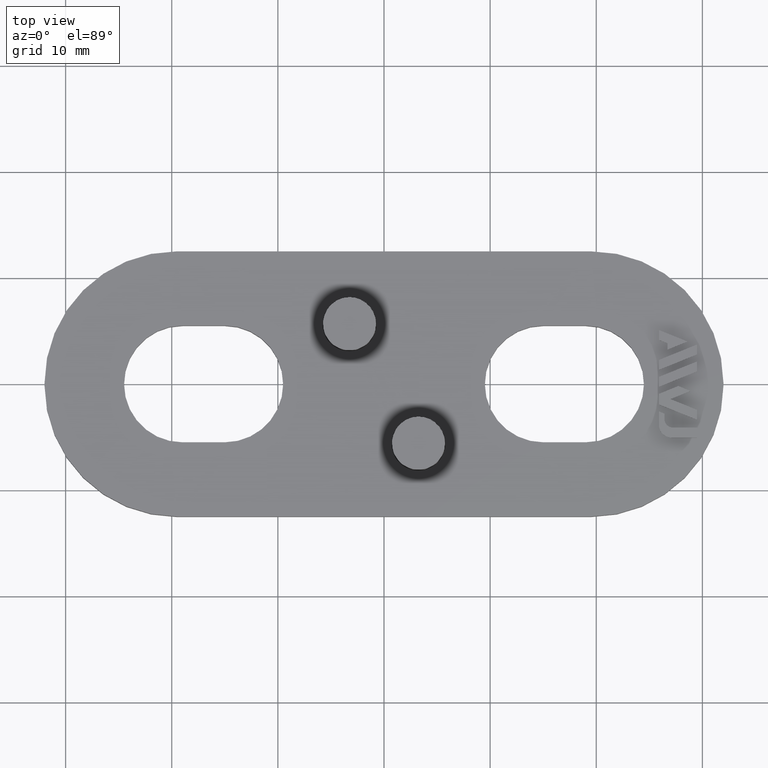
[diagram: clean part render]
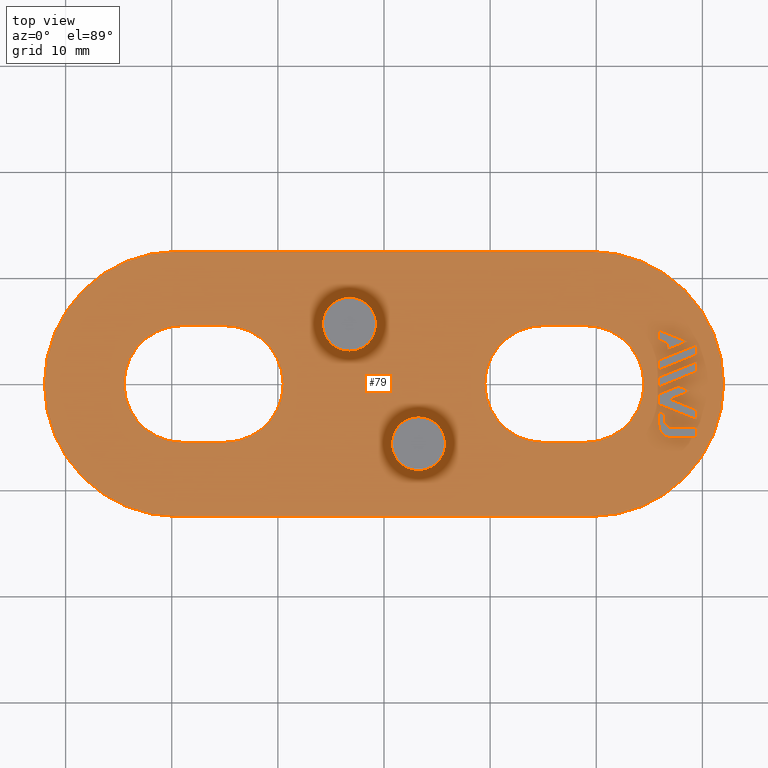
[diagram: same view with one face highlighted and labeled with its STEP entity id]
A machine part, top view. The second image highlights one B-rep face of the part: STEP entity #79.
In plain terms, the highlighted planar face has unit normal (0, -0, -1).
Its self-contained STEP definition (entity closure, byte-faithful):
#79 = ADVANCED_FACE( '', ( #159, #160, #161, #162, #163, #164, #165, #166, #167, #168 ), #169, .F. );
#159 = FACE_BOUND( '', #316, .T. );
#160 = FACE_BOUND( '', #317, .T. );
#161 = FACE_BOUND( '', #318, .T. );
#162 = FACE_BOUND( '', #319, .T. );
#163 = FACE_BOUND( '', #320, .T. );
#164 = FACE_BOUND( '', #321, .T. );
#165 = FACE_BOUND( '', #322, .T. );
#166 = FACE_BOUND( '', #323, .T. );
#167 = FACE_OUTER_BOUND( '', #324, .T. );
#168 = FACE_BOUND( '', #325, .T. );
#169 = PLANE( '', #326 );
#316 = EDGE_LOOP( '', ( #515, #516, #517, #518, #519, #520, #521, #522 ) );
#317 = EDGE_LOOP( '', ( #523, #524, #525, #526, #527, #528, #529 ) );
#318 = EDGE_LOOP( '', ( #530, #531, #532, #533 ) );
#319 = EDGE_LOOP( '', ( #534, #535, #536, #537 ) );
#320 = EDGE_LOOP( '', ( #538, #539, #540, #541, #542 ) );
#321 = EDGE_LOOP( '', ( #543 ) );
#322 = EDGE_LOOP( '', ( #544 ) );
#323 = EDGE_LOOP( '', ( #545, #546, #547, #548, #549, #550 ) );
#324 = EDGE_LOOP( '', ( #551, #552, #553, #554, #555, #556 ) );
#325 = EDGE_LOOP( '', ( #557, #558, #559, #560, #561, #562 ) );
#326 = AXIS2_PLACEMENT_3D( '', #563, #564, #565 );
#515 = ORIENTED_EDGE( '', *, *, #1070, .T. );
#516 = ORIENTED_EDGE( '', *, *, #1063, .T. );
#517 = ORIENTED_EDGE( '', *, *, #1067, .T. );
#518 = ORIENTED_EDGE( '', *, *, #1071, .T. );
#519 = ORIENTED_EDGE( '', *, *, #1072, .T. );
#520 = ORIENTED_EDGE( '', *, *, #1073, .T. );
#521 = ORIENTED_EDGE( '', *, *, #1074, .T. );
#522 = ORIENTED_EDGE( '', *, *, #1075, .T. );
#523 = ORIENTED_EDGE( '', *, *, #1076, .T. );
#524 = ORIENTED_EDGE( '', *, *, #1077, .T. );
#525 = ORIENTED_EDGE( '', *, *, #1078, .T. );
#526 = ORIENTED_EDGE( '', *, *, #1079, .T. );
#527 = ORIENTED_EDGE( '', *, *, #1080, .T. );
#528 = ORIENTED_EDGE( '', *, *, #1081, .T. );
#529 = ORIENTED_EDGE( '', *, *, #1082, .T. );
#530 = ORIENTED_EDGE( '', *, *, #1083, .T. );
#531 = ORIENTED_EDGE( '', *, *, #1084, .T. );
#532 = ORIENTED_EDGE( '', *, *, #1085, .T. );
#533 = ORIENTED_EDGE( '', *, *, #1086, .T. );
#534 = ORIENTED_EDGE( '', *, *, #1087, .T. );
#535 = ORIENTED_EDGE( '', *, *, #1088, .T. );
#536 = ORIENTED_EDGE( '', *, *, #1089, .T. );
#537 = ORIENTED_EDGE( '', *, *, #1090, .T. );
#538 = ORIENTED_EDGE( '', *, *, #1091, .T. );
#539 = ORIENTED_EDGE( '', *, *, #1092, .T. );
#540 = ORIENTED_EDGE( '', *, *, #1093, .T. );
#541 = ORIENTED_EDGE( '', *, *, #1094, .T. );
#542 = ORIENTED_EDGE( '', *, *, #1095, .T. );
#543 = ORIENTED_EDGE( '', *, *, #1096, .T. );
#544 = ORIENTED_EDGE( '', *, *, #1097, .T. );
#545 = ORIENTED_EDGE( '', *, *, #1098, .F. );
#546 = ORIENTED_EDGE( '', *, *, #1099, .F. );
#547 = ORIENTED_EDGE( '', *, *, #1100, .F. );
#548 = ORIENTED_EDGE( '', *, *, #1101, .F. );
#549 = ORIENTED_EDGE( '', *, *, #1102, .F. );
#550 = ORIENTED_EDGE( '', *, *, #1103, .F. );
#551 = ORIENTED_EDGE( '', *, *, #1060, .F. );
#552 = ORIENTED_EDGE( '', *, *, #1104, .F. );
#553 = ORIENTED_EDGE( '', *, *, #1105, .F. );
#554 = ORIENTED_EDGE( '', *, *, #1106, .F. );
#555 = ORIENTED_EDGE( '', *, *, #1107, .F. );
#556 = ORIENTED_EDGE( '', *, *, #1108, .F. );
#557 = ORIENTED_EDGE( '', *, *, #1109, .F. );
#558 = ORIENTED_EDGE( '', *, *, #1110, .F. );
#559 = ORIENTED_EDGE( '', *, *, #1111, .F. );
#560 = ORIENTED_EDGE( '', *, *, #1112, .F. );
#561 = ORIENTED_EDGE( '', *, *, #1113, .F. );
#562 = ORIENTED_EDGE( '', *, *, #1114, .F. );
#563 = CARTESIAN_POINT( '', ( 19.5000000000000, 0.000000000000000, 3.00000000000000 ) );
#564 = DIRECTION( '', ( 0.000000000000000, -6.12303176911189E-017, -1.00000000000000 ) );
#565 = DIRECTION( '', ( 8.93897586159986E-016, 1.00000000000000, -6.12303176911189E-017 ) );
#1060 = EDGE_CURVE( '', #1268, #1269, #1270, .T. );
#1063 = EDGE_CURVE( '', #1273, #1274, #1275, .T. );
#1067 = EDGE_CURVE( '', #1274, #1281, #1282, .T. );
#1070 = EDGE_CURVE( '', #1286, #1273, #1287, .T. );
#1071 = EDGE_CURVE( '', #1281, #1288, #1289, .T. );
#1072 = EDGE_CURVE( '', #1288, #1290, #1291, .T. );
#1073 = EDGE_CURVE( '', #1290, #1292, #1293, .T. );
#1074 = EDGE_CURVE( '', #1292, #1294, #1295, .T. );
#1075 = EDGE_CURVE( '', #1294, #1286, #1296, .T. );
#1076 = EDGE_CURVE( '', #1297, #1298, #1299, .T. );
#1077 = EDGE_CURVE( '', #1298, #1300, #1301, .T. );
#1078 = EDGE_CURVE( '', #1300, #1302, #1303, .T. );
#1079 = EDGE_CURVE( '', #1302, #1304, #1305, .T. );
#1080 = EDGE_CURVE( '', #1304, #1306, #1307, .T. );
#1081 = EDGE_CURVE( '', #1306, #1308, #1309, .T. );
#1082 = EDGE_CURVE( '', #1308, #1297, #1310, .T. );
#1083 = EDGE_CURVE( '', #1311, #1312, #1313, .T. );
#1084 = EDGE_CURVE( '', #1312, #1314, #1315, .T. );
#1085 = EDGE_CURVE( '', #1314, #1316, #1317, .T. );
#1086 = EDGE_CURVE( '', #1316, #1311, #1318, .T. );
#1087 = EDGE_CURVE( '', #1319, #1320, #1321, .T. );
#1088 = EDGE_CURVE( '', #1320, #1322, #1323, .T. );
#1089 = EDGE_CURVE( '', #1322, #1324, #1325, .T. );
#1090 = EDGE_CURVE( '', #1324, #1319, #1326, .T. );
#1091 = EDGE_CURVE( '', #1327, #1328, #1329, .T. );
#1092 = EDGE_CURVE( '', #1328, #1330, #1331, .T. );
#1093 = EDGE_CURVE( '', #1330, #1332, #1333, .T. );
#1094 = EDGE_CURVE( '', #1332, #1334, #1335, .T. );
#1095 = EDGE_CURVE( '', #1334, #1327, #1336, .T. );
#1096 = EDGE_CURVE( '', #1337, #1337, #1338, .T. );
#1097 = EDGE_CURVE( '', #1339, #1339, #1340, .T. );
#1098 = EDGE_CURVE( '', #1341, #1342, #1343, .T. );
#1099 = EDGE_CURVE( '', #1344, #1341, #1345, .T. );
#1100 = EDGE_CURVE( '', #1346, #1344, #1347, .T. );
#1101 = EDGE_CURVE( '', #1348, #1346, #1349, .T. );
#1102 = EDGE_CURVE( '', #1350, #1348, #1351, .T. );
#1103 = EDGE_CURVE( '', #1342, #1350, #1352, .T. );
#1104 = EDGE_CURVE( '', #1353, #1268, #1354, .T. );
#1105 = EDGE_CURVE( '', #1355, #1353, #1356, .T. );
#1106 = EDGE_CURVE( '', #1357, #1355, #1358, .T. );
#1107 = EDGE_CURVE( '', #1359, #1357, #1360, .T. );
#1108 = EDGE_CURVE( '', #1269, #1359, #1361, .T. );
#1109 = EDGE_CURVE( '', #1362, #1363, #1364, .T. );
#1110 = EDGE_CURVE( '', #1365, #1362, #1366, .T. );
#1111 = EDGE_CURVE( '', #1367, #1365, #1368, .T. );
#1112 = EDGE_CURVE( '', #1369, #1367, #1370, .T. );
#1113 = EDGE_CURVE( '', #1371, #1369, #1372, .T. );
#1114 = EDGE_CURVE( '', #1363, #1371, #1373, .T. );
#1268 = VERTEX_POINT( '', #1584 );
#1269 = VERTEX_POINT( '', #1585 );
#1270 = LINE( '', #1586, #1587 );
#1273 = VERTEX_POINT( '', #1592 );
#1274 = VERTEX_POINT( '', #1593 );
#1275 = LINE( '', #1594, #1595 );
#1281 = VERTEX_POINT( '', #1604 );
#1282 = CIRCLE( '', #1605, 1.20000000000001 );
#1286 = VERTEX_POINT( '', #1610 );
#1287 = LINE( '', #1611, #1612 );
#1288 = VERTEX_POINT( '', #1613 );
#1289 = LINE( '', #1614, #1615 );
#1290 = VERTEX_POINT( '', #1616 );
#1291 = LINE( '', #1617, #1618 );
#1292 = VERTEX_POINT( '', #1619 );
#1293 = LINE( '', #1620, #1621 );
#1294 = VERTEX_POINT( '', #1622 );
#1295 = CIRCLE( '', #1623, 0.800000000000002 );
#1296 = LINE( '', #1624, #1625 );
#1297 = VERTEX_POINT( '', #1626 );
#1298 = VERTEX_POINT( '', #1627 );
#1299 = LINE( '', #1628, #1629 );
#1300 = VERTEX_POINT( '', #1630 );
#1301 = LINE( '', #1631, #1632 );
#1302 = VERTEX_POINT( '', #1633 );
#1303 = LINE( '', #1634, #1635 );
#1304 = VERTEX_POINT( '', #1636 );
#1305 = LINE( '', #1637, #1638 );
#1306 = VERTEX_POINT( '', #1639 );
#1307 = LINE( '', #1640, #1641 );
#1308 = VERTEX_POINT( '', #1642 );
#1309 = LINE( '', #1643, #1644 );
#1310 = LINE( '', #1645, #1646 );
#1311 = VERTEX_POINT( '', #1647 );
#1312 = VERTEX_POINT( '', #1648 );
#1313 = LINE( '', #1649, #1650 );
#1314 = VERTEX_POINT( '', #1651 );
#1315 = LINE( '', #1652, #1653 );
#1316 = VERTEX_POINT( '', #1654 );
#1317 = LINE( '', #1655, #1656 );
#1318 = LINE( '', #1657, #1658 );
#1319 = VERTEX_POINT( '', #1659 );
#1320 = VERTEX_POINT( '', #1660 );
#1321 = LINE( '', #1661, #1662 );
#1322 = VERTEX_POINT( '', #1663 );
#1323 = LINE( '', #1664, #1665 );
#1324 = VERTEX_POINT( '', #1666 );
#1325 = LINE( '', #1667, #1668 );
#1326 = LINE( '', #1669, #1670 );
#1327 = VERTEX_POINT( '', #1671 );
#1328 = VERTEX_POINT( '', #1672 );
#1329 = LINE( '', #1673, #1674 );
#1330 = VERTEX_POINT( '', #1675 );
#1331 = LINE( '', #1676, #1677 );
#1332 = VERTEX_POINT( '', #1678 );
#1333 = LINE( '', #1679, #1680 );
#1334 = VERTEX_POINT( '', #1681 );
#1335 = LINE( '', #1682, #1683 );
#1336 = LINE( '', #1684, #1685 );
#1337 = VERTEX_POINT( '', #1686 );
#1338 = CIRCLE( '', #1687, 2.54363766232054 );
#1339 = VERTEX_POINT( '', #1688 );
#1340 = CIRCLE( '', #1689, 2.54363766232054 );
#1341 = VERTEX_POINT( '', #1690 );
#1342 = VERTEX_POINT( '', #1691 );
#1343 = CIRCLE( '', #1692, 5.50000000000000 );
#1344 = VERTEX_POINT( '', #1693 );
#1345 = CIRCLE( '', #1694, 5.50000000000000 );
#1346 = VERTEX_POINT( '', #1695 );
#1347 = LINE( '', #1696, #1697 );
#1348 = VERTEX_POINT( '', #1698 );
#1349 = CIRCLE( '', #1699, 5.50000000000000 );
#1350 = VERTEX_POINT( '', #1700 );
#1351 = CIRCLE( '', #1701, 5.50000000000000 );
#1352 = LINE( '', #1702, #1703 );
#1353 = VERTEX_POINT( '', #1704 );
#1354 = CIRCLE( '', #1705, 12.5000000000000 );
#1355 = VERTEX_POINT( '', #1706 );
#1356 = CIRCLE( '', #1707, 12.5000000000000 );
#1357 = VERTEX_POINT( '', #1708 );
#1358 = LINE( '', #1709, #1710 );
#1359 = VERTEX_POINT( '', #1711 );
#1360 = CIRCLE( '', #1712, 12.5000000000000 );
#1361 = CIRCLE( '', #1713, 12.5000000000000 );
#1362 = VERTEX_POINT( '', #1714 );
#1363 = VERTEX_POINT( '', #1715 );
#1364 = CIRCLE( '', #1716, 5.50000000000000 );
#1365 = VERTEX_POINT( '', #1717 );
#1366 = CIRCLE( '', #1718, 5.50000000000000 );
#1367 = VERTEX_POINT( '', #1719 );
#1368 = LINE( '', #1720, #1721 );
#1369 = VERTEX_POINT( '', #1722 );
#1370 = CIRCLE( '', #1723, 5.50000000000000 );
#1371 = VERTEX_POINT( '', #1724 );
#1372 = CIRCLE( '', #1725, 5.50000000000000 );
#1373 = LINE( '', #1726, #1727 );
#1584 = CARTESIAN_POINT( '', ( -19.5000000000000, 12.5000000000000, 3.00000000000000 ) );
#1585 = CARTESIAN_POINT( '', ( 19.5000000000000, 12.5000000000000, 3.00000000000000 ) );
#1586 = CARTESIAN_POINT( '', ( -19.5000000000000, 12.5000000000000, 3.00000000000000 ) );
#1587 = VECTOR( '', #2004, 1000.00000000000 );
#1592 = CARTESIAN_POINT( '', ( 29.4973661704647, -5.06525981745636, 3.00000000000001 ) );
#1593 = CARTESIAN_POINT( '', ( 27.1000000000000, -5.06525981745636, 3.00000000000001 ) );
#1594 = CARTESIAN_POINT( '', ( 29.4973661704647, -5.06525981745636, 3.00000000000001 ) );
#1595 = VECTOR( '', #2007, 1000.00000000000 );
#1604 = CARTESIAN_POINT( '', ( 25.9000000000000, -3.86525981745635, 3.00000000000001 ) );
#1605 = AXIS2_PLACEMENT_3D( '', #2011, #2012, #2013 );
#1610 = CARTESIAN_POINT( '', ( 29.4973661704647, -4.12512148626148, 3.00000000000001 ) );
#1611 = CARTESIAN_POINT( '', ( 29.4973661704647, -4.12512148626148, 3.00000000000001 ) );
#1612 = VECTOR( '', #2018, 1000.00000000000 );
#1613 = CARTESIAN_POINT( '', ( 25.9000000000000, -2.60278668205305, 3.00000000000001 ) );
#1614 = CARTESIAN_POINT( '', ( 25.9000000000000, -3.86525981745636, 3.00000000000001 ) );
#1615 = VECTOR( '', #2019, 1000.00000000000 );
#1616 = CARTESIAN_POINT( '', ( 26.4231249674403, -2.81414288828812, 3.00000000000001 ) );
#1617 = CARTESIAN_POINT( '', ( 25.9000000000000, -2.60278668205305, 3.00000000000001 ) );
#1618 = VECTOR( '', #2020, 1000.00000000000 );
#1619 = CARTESIAN_POINT( '', ( 26.4231249674403, -3.32512148626149, 3.00000000000001 ) );
#1620 = CARTESIAN_POINT( '', ( 26.4231249674403, -2.81414288828812, 3.00000000000001 ) );
#1621 = VECTOR( '', #2021, 1000.00000000000 );
#1622 = CARTESIAN_POINT( '', ( 27.2231249674403, -4.12512148626148, 3.00000000000001 ) );
#1623 = AXIS2_PLACEMENT_3D( '', #2022, #2023, #2024 );
#1624 = CARTESIAN_POINT( '', ( 27.2231249674403, -4.12512148626148, 3.00000000000001 ) );
#1625 = VECTOR( '', #2025, 1000.00000000000 );
#1626 = CARTESIAN_POINT( '', ( 26.9849571645033, -1.44248092904274, 3.00000000000001 ) );
#1627 = CARTESIAN_POINT( '', ( 29.4973661704647, -2.45767934129564, 3.00000000000001 ) );
#1628 = CARTESIAN_POINT( '', ( 26.9849571645033, -1.44248092904274, 3.00000000000001 ) );
#1629 = VECTOR( '', #2026, 1000.00000000000 );
#1630 = CARTESIAN_POINT( '', ( 29.4973661704647, -3.38727512132804, 3.00000000000001 ) );
#1631 = CARTESIAN_POINT( '', ( 29.4973661704647, -2.45767934129564, 3.00000000000001 ) );
#1632 = VECTOR( '', #2027, 1000.00000000000 );
#1633 = CARTESIAN_POINT( '', ( 25.9000000000000, -1.93391769463830, 3.00000000000001 ) );
#1634 = CARTESIAN_POINT( '', ( 29.4973661704647, -3.38727512132804, 3.00000000000001 ) );
#1635 = VECTOR( '', #2028, 1000.00000000000 );
#1636 = CARTESIAN_POINT( '', ( 25.9000000000000, -0.951248523052270, 3.00000000000001 ) );
#1637 = CARTESIAN_POINT( '', ( 25.9000000000000, -1.93391769463831, 3.00000000000001 ) );
#1638 = VECTOR( '', #2029, 1000.00000000000 );
#1639 = CARTESIAN_POINT( '', ( 27.7327570440905, -0.210637293102493, 3.00000000000001 ) );
#1640 = CARTESIAN_POINT( '', ( 25.9000000000000, -0.951248523052270, 3.00000000000001 ) );
#1641 = VECTOR( '', #2030, 1000.00000000000 );
#1642 = CARTESIAN_POINT( '', ( 28.8833737475895, -0.675435183118689, 3.00000000000001 ) );
#1643 = CARTESIAN_POINT( '', ( 27.7327570440905, -0.210637293102493, 3.00000000000001 ) );
#1644 = VECTOR( '', #2031, 1000.00000000000 );
#1645 = CARTESIAN_POINT( '', ( 28.8833737475895, -0.675435183118689, 3.00000000000001 ) );
#1646 = VECTOR( '', #2032, 1000.00000000000 );
#1647 = CARTESIAN_POINT( '', ( 25.9000000000000, 0.647204223241639, 3.00000000000001 ) );
#1648 = CARTESIAN_POINT( '', ( 29.4973661704647, 2.10079005184293, 3.00000000000001 ) );
#1649 = CARTESIAN_POINT( '', ( 25.9000000000000, 0.647204223241646, 3.00000000000001 ) );
#1650 = VECTOR( '', #2033, 1000.00000000000 );
#1651 = CARTESIAN_POINT( '', ( 29.4973661704647, 1.17120629296378, 3.00000000000001 ) );
#1652 = CARTESIAN_POINT( '', ( 29.4973661704647, 2.10079005184294, 3.00000000000001 ) );
#1653 = VECTOR( '', #2034, 1000.00000000000 );
#1654 = CARTESIAN_POINT( '', ( 25.9000000000000, -0.282379535637513, 3.00000000000001 ) );
#1655 = CARTESIAN_POINT( '', ( 29.4973661704647, 1.17120629296378, 3.00000000000001 ) );
#1656 = VECTOR( '', #2035, 1000.00000000000 );
#1657 = CARTESIAN_POINT( '', ( 25.9000000000000, -0.282379535637513, 3.00000000000000 ) );
#1658 = VECTOR( '', #2036, 1000.00000000000 );
#1659 = CARTESIAN_POINT( '', ( 25.9000000000000, 2.24561489549922, 3.00000000000000 ) );
#1660 = CARTESIAN_POINT( '', ( 29.4973661704647, 3.69899636449542, 3.00000000000001 ) );
#1661 = CARTESIAN_POINT( '', ( 25.9000000000000, 2.24561489549922, 3.00000000000001 ) );
#1662 = VECTOR( '', #2037, 1000.00000000000 );
#1663 = CARTESIAN_POINT( '', ( 29.4973661704647, 2.76968308156416, 3.00000000000000 ) );
#1664 = CARTESIAN_POINT( '', ( 29.4973661704647, 3.69899636449543, 3.00000000000000 ) );
#1665 = VECTOR( '', #2038, 1000.00000000000 );
#1666 = CARTESIAN_POINT( '', ( 25.9000000000000, 1.31609725296288, 3.00000000000000 ) );
#1667 = CARTESIAN_POINT( '', ( 29.4973661704647, 2.76968308156416, 3.00000000000000 ) );
#1668 = VECTOR( '', #2039, 1000.00000000000 );
#1669 = CARTESIAN_POINT( '', ( 25.9000000000000, 1.31609725296288, 3.00000000000000 ) );
#1670 = VECTOR( '', #2040, 1000.00000000000 );
#1671 = CARTESIAN_POINT( '', ( 28.5972101947165, 3.98330865976953, 3.00000000000001 ) );
#1672 = CARTESIAN_POINT( '', ( 26.7308540273208, 3.22960038336501, 3.00000000000001 ) );
#1673 = CARTESIAN_POINT( '', ( 28.5972101947165, 3.98330865976953, 3.00000000000001 ) );
#1674 = VECTOR( '', #2041, 1000.00000000000 );
#1675 = CARTESIAN_POINT( '', ( 26.7308540273208, 3.80766758978306, 3.00000000000001 ) );
#1676 = CARTESIAN_POINT( '', ( 26.7308540273208, 3.22960038336501, 3.00000000000001 ) );
#1677 = VECTOR( '', #2042, 1000.00000000000 );
#1678 = CARTESIAN_POINT( '', ( 25.9000000000000, 4.14359871706879, 3.00000000000001 ) );
#1679 = CARTESIAN_POINT( '', ( 26.7308540273208, 3.80766758978306, 3.00000000000001 ) );
#1680 = VECTOR( '', #2043, 1000.00000000000 );
#1681 = CARTESIAN_POINT( '', ( 25.9000000000000, 5.07291200000005, 3.00000000000001 ) );
#1682 = CARTESIAN_POINT( '', ( 25.9000000000000, 4.14359871706879, 3.00000000000001 ) );
#1683 = VECTOR( '', #2044, 1000.00000000000 );
#1684 = CARTESIAN_POINT( '', ( 25.9000000000000, 5.07291200000005, 3.00000000000001 ) );
#1685 = VECTOR( '', #2045, 1000.00000000000 );
#1686 = CARTESIAN_POINT( '', ( -3.25000000000000, 8.17280278691939, 3.00000000000000 ) );
#1687 = AXIS2_PLACEMENT_3D( '', #2046, #2047, #2048 );
#1688 = CARTESIAN_POINT( '', ( 3.25000000000000, -3.08552746227831, 3.00000000000000 ) );
#1689 = AXIS2_PLACEMENT_3D( '', #2049, #2050, #2051 );
#1690 = CARTESIAN_POINT( '', ( -9.50000000000000, -6.93889390390723E-015, 3.00000299994030 ) );
#1691 = CARTESIAN_POINT( '', ( -15.0000000000000, 5.50000000000000, 3.00000299994030 ) );
#1692 = AXIS2_PLACEMENT_3D( '', #2052, #2053, #2054 );
#1693 = CARTESIAN_POINT( '', ( -15.0000000000000, -5.50000000000001, 3.00000299994030 ) );
#1694 = AXIS2_PLACEMENT_3D( '', #2055, #2056, #2057 );
#1695 = CARTESIAN_POINT( '', ( -19.0000000000000, -5.50000000000001, 3.00000299994030 ) );
#1696 = CARTESIAN_POINT( '', ( -19.0000000000000, -5.50000000000001, 3.00000299994030 ) );
#1697 = VECTOR( '', #2058, 1000.00000000000 );
#1698 = CARTESIAN_POINT( '', ( -24.5000000000000, 0.000000000000000, 3.00000299994030 ) );
#1699 = AXIS2_PLACEMENT_3D( '', #2059, #2060, #2061 );
#1700 = CARTESIAN_POINT( '', ( -19.0000000000000, 5.50000000000000, 3.00000299994030 ) );
#1701 = AXIS2_PLACEMENT_3D( '', #2062, #2063, #2064 );
#1702 = CARTESIAN_POINT( '', ( -15.0000000000000, 5.50000000000000, 3.00000299994030 ) );
#1703 = VECTOR( '', #2065, 1000.00000000000 );
#1704 = CARTESIAN_POINT( '', ( -32.0000000000000, -6.93889390390723E-015, 3.00000000000000 ) );
#1705 = AXIS2_PLACEMENT_3D( '', #2066, #2067, #2068 );
#1706 = CARTESIAN_POINT( '', ( -19.5000000000000, -12.5000000000000, 3.00000000000000 ) );
#1707 = AXIS2_PLACEMENT_3D( '', #2069, #2070, #2071 );
#1708 = CARTESIAN_POINT( '', ( 19.5000000000000, -12.5000000000000, 3.00000000000000 ) );
#1709 = CARTESIAN_POINT( '', ( 19.5000000000000, -12.5000000000000, 3.00000000000000 ) );
#1710 = VECTOR( '', #2072, 1000.00000000000 );
#1711 = CARTESIAN_POINT( '', ( 32.0000000000000, 0.000000000000000, 3.00000000000000 ) );
#1712 = AXIS2_PLACEMENT_3D( '', #2073, #2074, #2075 );
#1713 = AXIS2_PLACEMENT_3D( '', #2076, #2077, #2078 );
#1714 = CARTESIAN_POINT( '', ( 24.5000000000000, 0.000000000000000, 3.00000299994030 ) );
#1715 = CARTESIAN_POINT( '', ( 19.0000000000000, 5.50000000000000, 3.00000299994030 ) );
#1716 = AXIS2_PLACEMENT_3D( '', #2079, #2080, #2081 );
#1717 = CARTESIAN_POINT( '', ( 19.0000000000000, -5.49999999999999, 3.00000299994030 ) );
#1718 = AXIS2_PLACEMENT_3D( '', #2082, #2083, #2084 );
#1719 = CARTESIAN_POINT( '', ( 15.0000000000000, -5.49999999999999, 3.00000299994030 ) );
#1720 = CARTESIAN_POINT( '', ( 15.0000000000000, -5.49999999999999, 3.00000299994030 ) );
#1721 = VECTOR( '', #2085, 1000.00000000000 );
#1722 = CARTESIAN_POINT( '', ( 9.50000000000000, 0.000000000000000, 3.00000299994030 ) );
#1723 = AXIS2_PLACEMENT_3D( '', #2086, #2087, #2088 );
#1724 = CARTESIAN_POINT( '', ( 15.0000000000000, 5.50000000000000, 3.00000299994030 ) );
#1725 = AXIS2_PLACEMENT_3D( '', #2089, #2090, #2091 );
#1726 = CARTESIAN_POINT( '', ( 19.0000000000000, 5.50000000000000, 3.00000299994030 ) );
#1727 = VECTOR( '', #2092, 1000.00000000000 );
#2004 = DIRECTION( '', ( 1.00000000000000, 0.000000000000000, 0.000000000000000 ) );
#2007 = DIRECTION( '', ( -1.00000000000000, -5.55111512312578E-017, 3.06151588455594E-016 ) );
#2011 = CARTESIAN_POINT( '', ( 27.1000000000000, -3.86525981745635, 3.00000000000001 ) );
#2012 = DIRECTION( '', ( 5.03076860811430E-016, 4.47623976236228E-015, -1.00000000000000 ) );
#2013 = DIRECTION( '', ( -1.00000000000000, -4.99600361081320E-016, -5.03076860811433E-016 ) );
#2018 = DIRECTION( '', ( 1.66533453693773E-016, -1.00000000000000, -4.93038065763132E-032 ) );
#2019 = DIRECTION( '', ( -1.11022302462516E-016, 1.00000000000000, -9.86076131526265E-032 ) );
#2020 = DIRECTION( '', ( 0.927183854566787, -0.374606593415912, -2.83858809866003E-016 ) );
#2021 = DIRECTION( '', ( 1.11022302462516E-016, -1.00000000000000, 9.86076131526265E-032 ) );
#2022 = CARTESIAN_POINT( '', ( 27.2231249674403, -3.32512148626149, 3.00000000000001 ) );
#2023 = DIRECTION( '', ( -5.03076860811433E-016, 1.30617182422704E-015, 1.00000000000000 ) );
#2024 = DIRECTION( '', ( -1.66533453693774E-016, -1.00000000000000, 1.30617182422704E-015 ) );
#2025 = DIRECTION( '', ( 1.00000000000000, 1.11022302462516E-016, -3.06151588455595E-016 ) );
#2026 = DIRECTION( '', ( 0.927168564368796, -0.374644435760503, -2.83854128747600E-016 ) );
#2027 = DIRECTION( '', ( 1.11022302462516E-016, -1.00000000000000, 9.86076131526265E-032 ) );
#2028 = DIRECTION( '', ( -0.927190376050330, 0.374590451773198, 2.83860806428548E-016 ) );
#2029 = DIRECTION( '', ( -5.55111512312578E-017, 1.00000000000000, 1.23259516440783E-032 ) );
#2030 = DIRECTION( '', ( 0.927161130553612, 0.374662832411421, -2.83851852873273E-016 ) );
#2031 = DIRECTION( '', ( 0.927206645422846, -0.374550179126525, -2.83865787322787E-016 ) );
#2032 = DIRECTION( '', ( -0.927177805503196, -0.374621565025663, 2.83856957935576E-016 ) );
#2033 = DIRECTION( '', ( 0.927169929060563, 0.374641058409020, -2.83854546550152E-016 ) );
#2034 = DIRECTION( '', ( -1.11022302462516E-016, -1.00000000000000, -3.08148791101958E-031 ) );
#2035 = DIRECTION( '', ( -0.927169929060563, -0.374641058409020, 2.83854546550152E-016 ) );
#2036 = DIRECTION( '', ( 1.66533453693773E-016, 1.00000000000000, 9.86076131526265E-032 ) );
#2037 = DIRECTION( '', ( 0.927188223823227, 0.374595778945159, -2.83860147520802E-016 ) );
#2038 = DIRECTION( '', ( 1.11022302462516E-016, -1.00000000000000, 9.86076131526265E-032 ) );
#2039 = DIRECTION( '', ( -0.927169929060563, -0.374641058409020, 2.83854546550152E-016 ) );
#2040 = DIRECTION( '', ( -5.55111512312578E-017, 1.00000000000000, 1.60237371373018E-031 ) );
#2041 = DIRECTION( '', ( -0.927243990558706, -0.374457717202846, 2.83877220595452E-016 ) );
#2042 = DIRECTION( '', ( -5.55111512312578E-017, 1.00000000000000, 1.60237371373018E-031 ) );
#2043 = DIRECTION( '', ( -0.927089140205383, 0.374840934415178, 2.83829812913809E-016 ) );
#2044 = DIRECTION( '', ( -1.66533453693773E-016, 1.00000000000000, 2.46519032881566E-031 ) );
#2045 = DIRECTION( '', ( 0.927200607094025, -0.374565126786346, -2.83863938678827E-016 ) );
#2046 = CARTESIAN_POINT( '', ( -3.25000000000000, 5.62916512459885, 3.00000000000000 ) );
#2047 = DIRECTION( '', ( 0.000000000000000, -6.12303176911189E-017, -1.00000000000000 ) );
#2048 = DIRECTION( '', ( 0.000000000000000, 1.00000000000000, -6.12303176911189E-017 ) );
#2049 = CARTESIAN_POINT( '', ( 3.25000000000000, -5.62916512459885, 3.00000000000000 ) );
#2050 = DIRECTION( '', ( 0.000000000000000, -6.12303176911189E-017, -1.00000000000000 ) );
#2051 = DIRECTION( '', ( 0.000000000000000, 1.00000000000000, -6.12303176911189E-017 ) );
#2052 = CARTESIAN_POINT( '', ( -15.0000000000000, 0.000000000000000, 3.00000299994030 ) );
#2053 = DIRECTION( '', ( 0.000000000000000, 6.12303176911189E-017, 1.00000000000000 ) );
#2054 = DIRECTION( '', ( 6.12303176911189E-017, -1.00000000000000, 6.12303176911189E-017 ) );
#2055 = CARTESIAN_POINT( '', ( -15.0000000000000, 0.000000000000000, 3.00000299994030 ) );
#2056 = DIRECTION( '', ( 0.000000000000000, 6.12303176911189E-017, 1.00000000000000 ) );
#2057 = DIRECTION( '', ( 6.12303176911189E-017, -1.00000000000000, 6.12303176911189E-017 ) );
#2058 = DIRECTION( '', ( 1.00000000000000, 6.12303176911189E-017, -3.74915180455534E-033 ) );
#2059 = CARTESIAN_POINT( '', ( -19.0000000000000, 0.000000000000000, 3.00000299994030 ) );
#2060 = DIRECTION( '', ( 0.000000000000000, 6.12303176911189E-017, 1.00000000000000 ) );
#2061 = DIRECTION( '', ( 6.12303176911189E-017, -1.00000000000000, 6.12303176911189E-017 ) );
#2062 = CARTESIAN_POINT( '', ( -19.0000000000000, -6.93889390390723E-015, 3.00000299994030 ) );
#2063 = DIRECTION( '', ( 0.000000000000000, 6.12303176911189E-017, 1.00000000000000 ) );
#2064 = DIRECTION( '', ( 6.12303176911189E-017, -1.00000000000000, 6.12303176911189E-017 ) );
#2065 = DIRECTION( '', ( -1.00000000000000, -6.12303176911189E-017, 3.74915180455534E-033 ) );
#2066 = CARTESIAN_POINT( '', ( -19.5000000000000, 0.000000000000000, 3.00000000000000 ) );
#2067 = DIRECTION( '', ( 0.000000000000000, -6.12303176911189E-017, -1.00000000000000 ) );
#2068 = DIRECTION( '', ( -2.16325438465170E-016, 1.00000000000000, -6.12303176911189E-017 ) );
#2069 = CARTESIAN_POINT( '', ( -19.5000000000000, -6.93889390390723E-015, 3.00000000000000 ) );
#2070 = DIRECTION( '', ( 0.000000000000000, -6.12303176911189E-017, -1.00000000000000 ) );
#2071 = DIRECTION( '', ( -2.16325438465170E-016, 1.00000000000000, -6.12303176911189E-017 ) );
#2072 = DIRECTION( '', ( -1.00000000000000, 0.000000000000000, 0.000000000000000 ) );
#2073 = CARTESIAN_POINT( '', ( 19.5000000000000, 0.000000000000000, 3.00000000000000 ) );
#2074 = DIRECTION( '', ( 5.60519385729927E-049, -6.12303176911189E-017, -1.00000000000000 ) );
#2075 = DIRECTION( '', ( 6.12303176911191E-017, 1.00000000000000, -6.12303176911189E-017 ) );
#2076 = CARTESIAN_POINT( '', ( 19.5000000000000, 0.000000000000000, 3.00000000000000 ) );
#2077 = DIRECTION( '', ( 0.000000000000000, -6.12303176911189E-017, -1.00000000000000 ) );
#2078 = DIRECTION( '', ( 6.12303176911188E-017, 1.00000000000000, -6.12303176911189E-017 ) );
#2079 = CARTESIAN_POINT( '', ( 19.0000000000000, 0.000000000000000, 3.00000299994030 ) );
#2080 = DIRECTION( '', ( 7.23811190250423E-049, 6.12303176911189E-017, 1.00000000000000 ) );
#2081 = DIRECTION( '', ( 5.78241158658936E-017, -1.00000000000000, 6.12303176911189E-017 ) );
#2082 = CARTESIAN_POINT( '', ( 19.0000000000000, 0.000000000000000, 3.00000299994030 ) );
#2083 = DIRECTION( '', ( 0.000000000000000, 6.12303176911189E-017, 1.00000000000000 ) );
#2084 = DIRECTION( '', ( 5.78241158658935E-017, -1.00000000000000, 6.12303176911189E-017 ) );
#2085 = DIRECTION( '', ( 1.00000000000000, 5.78241158658936E-017, -3.54058898467673E-033 ) );
#2086 = CARTESIAN_POINT( '', ( 15.0000000000000, 0.000000000000000, 3.00000299994030 ) );
#2087 = DIRECTION( '', ( 0.000000000000000, 6.12303176911189E-017, 1.00000000000000 ) );
#2088 = DIRECTION( '', ( 5.78241158658935E-017, -1.00000000000000, 6.12303176911189E-017 ) );
#2089 = CARTESIAN_POINT( '', ( 15.0000000000000, 0.000000000000000, 3.00000299994030 ) );
#2090 = DIRECTION( '', ( 7.23811190250423E-049, 6.12303176911189E-017, 1.00000000000000 ) );
#2091 = DIRECTION( '', ( 5.78241158658936E-017, -1.00000000000000, 6.12303176911189E-017 ) );
#2092 = DIRECTION( '', ( -1.00000000000000, -5.78241158658936E-017, 3.54058898467673E-033 ) );